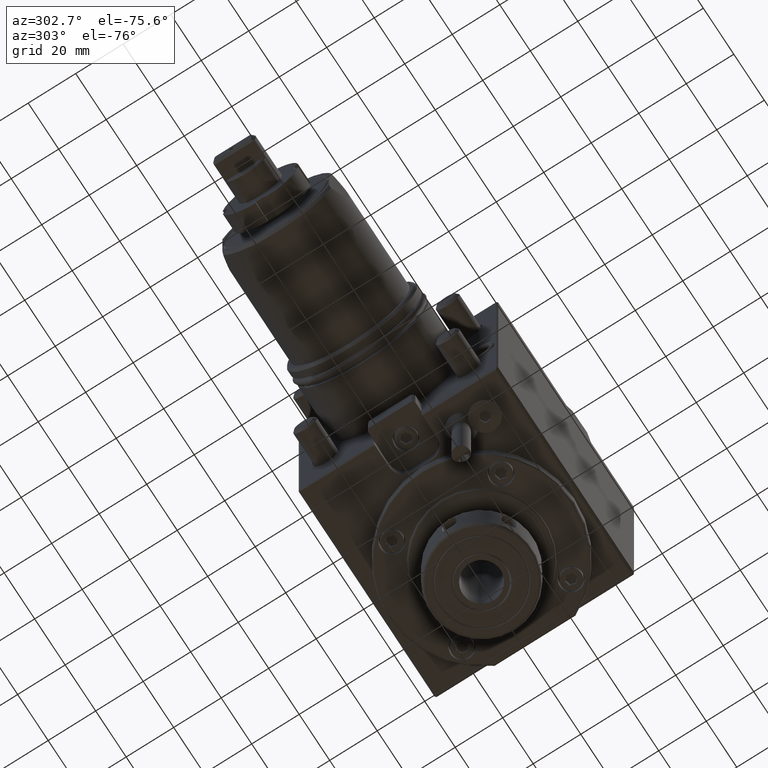
[diagram: clean part render]
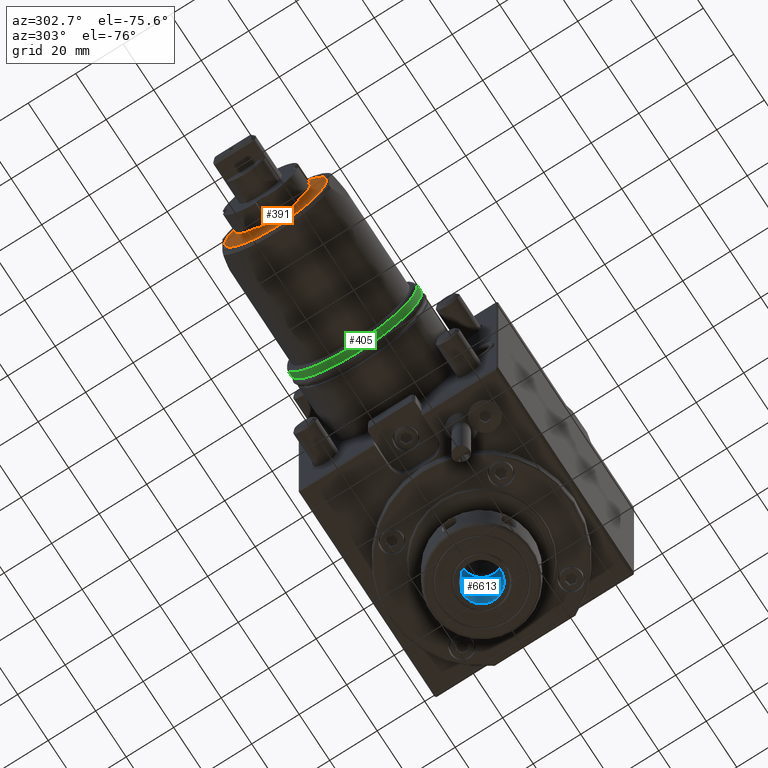
[diagram: same view with three faces highlighted in distinct colors, each labeled with its STEP entity id]
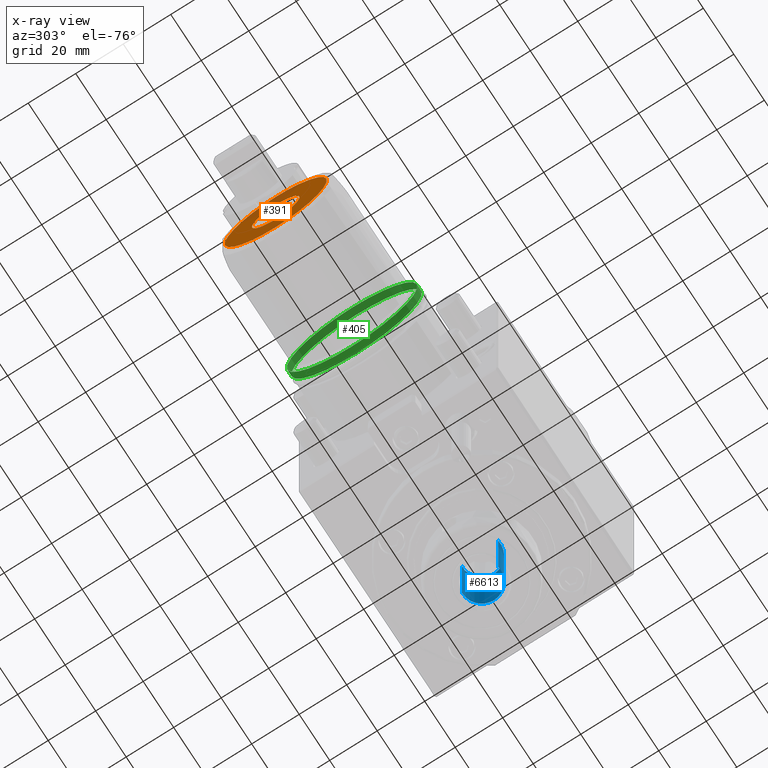
[diagram: x-ray of the same camera — body ghosted, the three highlighted faces saturated]
A machine part, auxiliary view with three faces highlighted in distinct colors.
The next image is the same camera in x-ray (body ghosted, the three faces saturated) — at least one of them is partly hidden behind the body in this view.
Their STEP definitions:

[orange] entity #391 — the highlighted planar face has unit normal (-1, 0, 0).
#284 = FACE_OUTER_BOUND ( 'NONE', #11391, .T. ) ;
#391 = ADVANCED_FACE ( 'NONE', ( #9730, #284 ), #3385, .T. ) ;
#621 = CARTESIAN_POINT ( 'NONE',  ( -79.99999999999823785, 7.506671797389940721E-14, 21.49996253417524983 ) ) ;
#1809 = EDGE_LOOP ( 'NONE', ( #7541 ) ) ;
#1979 = AXIS2_PLACEMENT_3D ( 'NONE', #5243, #6054, #11553 ) ;
#3185 = DIRECTION ( 'NONE',  ( 6.938892702434765283E-15, 3.491481338843133355E-15, 1.000000000000000000 ) ) ;
#3239 = AXIS2_PLACEMENT_3D ( 'NONE', #11298, #5844, #3185 ) ;
#3385 = PLANE ( 'NONE',  #1979 ) ;
#3892 = CARTESIAN_POINT ( 'NONE',  ( -79.99999999999832312, 3.491481943394924410E-14, 10.00000173150514726 ) ) ;
#5197 = VERTEX_POINT ( 'NONE', #621 ) ;
#5243 = CARTESIAN_POINT ( 'NONE',  ( -79.99999999999839417, 1.911695424151806058E-27, 5.475313308663499075E-13 ) ) ;
#5844 = DIRECTION ( 'NONE',  ( 1.000000000000000000, -2.416709936738970001E-29, -6.921732359995147848E-15 ) ) ;
#5880 = DIRECTION ( 'NONE',  ( -1.000000000000000000, 2.416709936738970001E-29, 6.921732359995147848E-15 ) ) ;
#6054 = DIRECTION ( 'NONE',  ( -1.000000000000000000, 2.416709936738970001E-29, 6.921732359995147848E-15 ) ) ;
#6799 = CARTESIAN_POINT ( 'NONE',  ( -79.99999999999839417, 1.911695424151806058E-27, 5.475313308663499075E-13 ) ) ;
#7541 = ORIENTED_EDGE ( 'NONE', *, *, #10795, .T. ) ;
#8351 = EDGE_CURVE ( 'NONE', #5197, #5197, #11208, .T. ) ;
#8508 = AXIS2_PLACEMENT_3D ( 'NONE', #6799, #5880, #9562 ) ;
#8652 = ORIENTED_EDGE ( 'NONE', *, *, #8351, .T. ) ;
#8703 = VERTEX_POINT ( 'NONE', #3892 ) ;
#9562 = DIRECTION ( 'NONE',  ( 7.100275902495606660E-15, 3.491481338843132961E-15, 1.000000000000000000 ) ) ;
#9730 = FACE_BOUND ( 'NONE', #1809, .T. ) ;
#10209 = CIRCLE ( 'NONE', #3239, 10.00000173150460014 ) ;
#10795 = EDGE_CURVE ( 'NONE', #8703, #8703, #10209, .T. ) ;
#11208 = CIRCLE ( 'NONE', #8508, 21.49996253417470271 ) ;
#11298 = CARTESIAN_POINT ( 'NONE',  ( -79.99999999999839417, 1.911695424151806058E-27, 5.475313308663499075E-13 ) ) ;
#11391 = EDGE_LOOP ( 'NONE', ( #8652 ) ) ;
#11553 = DIRECTION ( 'NONE',  ( -6.921732359995147848E-15, -3.491481338843133355E-15, -1.000000000000000000 ) ) ;

[blue] entity #6613 — the highlighted cylindrical surface (edge-blend (fillet) strip) has radius 8 mm, axis along (-0, -0, -1).
#53 = ORIENTED_EDGE ( 'NONE', *, *, #9553, .T. ) ;
#755 = CARTESIAN_POINT ( 'NONE',  ( 53.60514746841820255, -7.877468338578965223, -84.50000000000035527 ) ) ;
#812 = DIRECTION ( 'NONE',  ( -6.940284708437133209E-15, -3.491481338843133355E-15, -1.000000000000000000 ) ) ;
#857 = CARTESIAN_POINT ( 'NONE',  ( 61.53360636614925028, 4.742323755315887901, -84.50000000062114225 ) ) ;
#1148 = CARTESIAN_POINT ( 'NONE',  ( 54.99999999999941025, -2.950301731322461254E-13, -84.50000000000039790 ) ) ;
#1400 = DIRECTION ( 'NONE',  ( -1.000000000000000000, 2.465189257704882864E-29, 6.938890888998412564E-15 ) ) ;
#1548 = VERTEX_POINT ( 'NONE', #11341 ) ;
#1762 = CARTESIAN_POINT ( 'NONE',  ( 54.13697720904740862, -7.953316746967255213, -84.50000000062085803 ) ) ;
#1826 = DIRECTION ( 'NONE',  ( -1.000000000000000000, 2.465187998247913771E-29, 6.938887343942202129E-15 ) ) ;
#2037 = VECTOR ( 'NONE', #4453, 1000.000000000000000 ) ;
#2069 = AXIS2_PLACEMENT_3D ( 'NONE', #5382, #812, #1826 ) ;
#2116 = EDGE_CURVE ( 'NONE', #10483, #7891, #3857, .T. ) ;
#2603 = CIRCLE ( 'NONE', #6476, 8.000011650309071243 ) ;
#2709 = ORIENTED_EDGE ( 'NONE', *, *, #4631, .F. ) ;
#2721 = ORIENTED_EDGE ( 'NONE', *, *, #4728, .T. ) ;
#2724 = CARTESIAN_POINT ( 'NONE',  ( 61.69524361906412224, -4.511248123236645036, -84.50000000062111383 ) ) ;
#2736 = FACE_OUTER_BOUND ( 'NONE', #4198, .T. ) ;
#2783 = CARTESIAN_POINT ( 'NONE',  ( 63.04504416676796552, 0.6744709799343546752, -84.50000000062115646 ) ) ;
#2959 = DIRECTION ( 'NONE',  ( -1.000000000000000000, 2.465189257704882864E-29, 6.938890888998412564E-15 ) ) ;
#3041 = VERTEX_POINT ( 'NONE', #6545 ) ;
#3244 = CARTESIAN_POINT ( 'NONE',  ( 54.99999999999967315, -1.640996146187237612E-13, -46.99999762080827992 ) ) ;
#3379 = ORIENTED_EDGE ( 'NONE', *, *, #11314, .T. ) ;
#3547 = CARTESIAN_POINT ( 'NONE',  ( 54.41734878235686779, 7.978765817070824440, -46.99999762080830834 ) ) ;
#3857 = B_SPLINE_CURVE_WITH_KNOTS ( 'NONE', 3,
 ( #4528, #5302, #6350, #11857, #5366, #857, #10829, #9003, #2783, #9242, #8218, #2724, #6288, #11915, #6468, #9966, #7317, #11011 ),
 .UNSPECIFIED., .F., .F.,
 ( 4, 2, 2, 2, 2, 2, 2, 2, 4 ),
 ( 0.000000000000000000, 0.1249999999999999445, 0.2499999999999998890, 0.3749999999999998335, 0.5000000000000000000, 0.6250000000000001110, 0.7500000000000001110, 0.8750000000000000000, 1.000000000000000000 ),
 .UNSPECIFIED. ) ;
#4198 = EDGE_LOOP ( 'NONE', ( #2709, #2721, #53, #11709, #3379, #6314 ) ) ;
#4223 = AXIS2_PLACEMENT_3D ( 'NONE', #1148, #4819, #2959 ) ;
#4453 = DIRECTION ( 'NONE',  ( -6.982962677686266711E-15, -3.491481338843133355E-15, -1.000000000000000000 ) ) ;
#4509 = CARTESIAN_POINT ( 'NONE',  ( 54.41734908003115834, 7.978761740748009146, -63.08935524965240660 ) ) ;
#4528 = CARTESIAN_POINT ( 'NONE',  ( 54.95414532491950865, 7.999872059230455079, -84.50000000062092909 ) ) ;
#4631 = EDGE_CURVE ( 'NONE', #4733, #1548, #2603, .T. ) ;
#4644 = AXIS2_PLACEMENT_3D ( 'NONE', #10526, #10712, #1400 ) ;
#4728 = EDGE_CURVE ( 'NONE', #4733, #3041, #5599, .T. ) ;
#4733 = VERTEX_POINT ( 'NONE', #3547 ) ;
#4819 = DIRECTION ( 'NONE',  ( -6.940284708437133209E-15, -3.491481338843133355E-15, -1.000000000000000000 ) ) ;
#5302 = CARTESIAN_POINT ( 'NONE',  ( 56.03926605585761678, 8.006095978263477519, -84.50000000062111383 ) ) ;
#5366 = CARTESIAN_POINT ( 'NONE',  ( 60.03425317552104445, 6.311413606536729226, -84.50000000062112804 ) ) ;
#5382 = CARTESIAN_POINT ( 'NONE',  ( 54.99999999999929656, -3.497719917061358356E-13, -100.1786799817263898 ) ) ;
#5599 = LINE ( 'NONE', #4509, #2037 ) ;
#6244 = CYLINDRICAL_SURFACE ( 'NONE', #2069, 8.000007563131898536 ) ;
#6288 = CARTESIAN_POINT ( 'NONE',  ( 61.01485107808098718, -5.385091759342134132, -84.50000000062112804 ) ) ;
#6314 = ORIENTED_EDGE ( 'NONE', *, *, #6837, .T. ) ;
#6350 = CARTESIAN_POINT ( 'NONE',  ( 57.12517749307807691, 7.788534353197504423, -84.50000000062112804 ) ) ;
#6468 = CARTESIAN_POINT ( 'NONE',  ( 58.39232909290323903, -7.325964105390707637, -84.50000000062108541 ) ) ;
#6476 = AXIS2_PLACEMENT_3D ( 'NONE', #3244, #6941, #8704 ) ;
#6545 = CARTESIAN_POINT ( 'NONE',  ( 54.41734908003100912, 7.978761740747934539, -84.50000000000041211 ) ) ;
#6613 = ADVANCED_FACE ( 'NONE', ( #2736 ), #6244, .F. ) ;
#6837 = EDGE_CURVE ( 'NONE', #11953, #1548, #9785, .T. ) ;
#6941 = DIRECTION ( 'NONE',  ( -6.940284708437133209E-15, -3.491481338843133355E-15, -1.000000000000000000 ) ) ;
#7251 = DIRECTION ( 'NONE',  ( 6.982962677686266711E-15, 3.491481338843133355E-15, 1.000000000000000000 ) ) ;
#7317 = CARTESIAN_POINT ( 'NONE',  ( 55.21578265456025036, -8.070383175167451739, -84.50000000062107119 ) ) ;
#7891 = VERTEX_POINT ( 'NONE', #1762 ) ;
#8137 = CARTESIAN_POINT ( 'NONE',  ( 54.95414532491950865, 7.999872059230455079, -84.50000000062092909 ) ) ;
#8218 = CARTESIAN_POINT ( 'NONE',  ( 62.65504661787486640, -2.564743267109843128, -84.50000000062111383 ) ) ;
#8704 = DIRECTION ( 'NONE',  ( -1.000000000000000000, 2.465186738792233873E-29, 6.938883798889620455E-15 ) ) ;
#9002 = CARTESIAN_POINT ( 'NONE',  ( 53.60514746841835887, -7.877468338578890616, -63.08935524965235686 ) ) ;
#9003 = CARTESIAN_POINT ( 'NONE',  ( 62.87704082185681642, 1.769145171776950853, -84.50000000062115646 ) ) ;
#9048 = CIRCLE ( 'NONE', #4223, 8.000003475954718724 ) ;
#9091 = CIRCLE ( 'NONE', #4644, 8.000003475954718724 ) ;
#9242 = CARTESIAN_POINT ( 'NONE',  ( 62.93402189572151428, -1.492964603141417657, -84.50000000062111383 ) ) ;
#9553 = EDGE_CURVE ( 'NONE', #3041, #10483, #9091, .T. ) ;
#9785 = LINE ( 'NONE', #9002, #11672 ) ;
#9966 = CARTESIAN_POINT ( 'NONE',  ( 56.31824054849057148, -7.964916107803575507, -84.50000000062107119 ) ) ;
#10483 = VERTEX_POINT ( 'NONE', #8137 ) ;
#10526 = CARTESIAN_POINT ( 'NONE',  ( 54.99999999999941025, -2.950301731322461254E-13, -84.50000000000039790 ) ) ;
#10712 = DIRECTION ( 'NONE',  ( -6.940284708437133209E-15, -3.491481338843133355E-15, -1.000000000000000000 ) ) ;
#10829 = CARTESIAN_POINT ( 'NONE',  ( 62.12115055913739781, 3.803532760752394992, -84.50000000062112804 ) ) ;
#11011 = CARTESIAN_POINT ( 'NONE',  ( 54.13697720904740862, -7.953316746967255213, -84.50000000062085803 ) ) ;
#11314 = EDGE_CURVE ( 'NONE', #7891, #11953, #9048, .T. ) ;
#11341 = CARTESIAN_POINT ( 'NONE',  ( 53.60514746841847256, -7.877468338578835549, -46.99999762080674515 ) ) ;
#11672 = VECTOR ( 'NONE', #7251, 1000.000000000000000 ) ;
#11709 = ORIENTED_EDGE ( 'NONE', *, *, #2116, .T. ) ;
#11857 = CARTESIAN_POINT ( 'NONE',  ( 59.12312399289891118, 6.941001029188990756, -84.50000000062111383 ) ) ;
#11915 = CARTESIAN_POINT ( 'NONE',  ( 59.36301934018379711, -6.792768874708722038, -84.50000000062111383 ) ) ;
#11953 = VERTEX_POINT ( 'NONE', #755 ) ;

[green] entity #405 — the highlighted cylindrical surface (bore or boss wall) has radius 27.5 mm, axis along (-1, 0, 0).
#367 = ORIENTED_EDGE ( 'NONE', *, *, #7428, .T. ) ;
#405 = ADVANCED_FACE ( 'NONE', ( #2476, #2355 ), #2296, .T. ) ;
#696 = DIRECTION ( 'NONE',  ( -1.000000000000000000, 2.416709936738970001E-29, 6.921732359995147848E-15 ) ) ;
#818 = CARTESIAN_POINT ( 'NONE',  ( -26.99999999999804956, 6.308391576801436420E-28, 1.806795157866047239E-13 ) ) ;
#1521 = VERTEX_POINT ( 'NONE', #8110 ) ;
#2097 = AXIS2_PLACEMENT_3D ( 'NONE', #818, #696, #7220 ) ;
#2133 = VERTEX_POINT ( 'NONE', #10358 ) ;
#2296 = CYLINDRICAL_SURFACE ( 'NONE', #9110, 27.50000150680589783 ) ;
#2355 = FACE_OUTER_BOUND ( 'NONE', #9338, .T. ) ;
#2465 = DIRECTION ( 'NONE',  ( -6.938893503694182363E-15, -3.491481338843133355E-15, -1.000000000000000000 ) ) ;
#2476 = FACE_OUTER_BOUND ( 'NONE', #11258, .T. ) ;
#2990 = DIRECTION ( 'NONE',  ( -7.065055224135836543E-15, -3.491481338843133355E-15, -1.000000000000000000 ) ) ;
#4761 = AXIS2_PLACEMENT_3D ( 'NONE', #8212, #10882, #2465 ) ;
#4937 = ORIENTED_EDGE ( 'NONE', *, *, #5780, .F. ) ;
#5780 = EDGE_CURVE ( 'NONE', #2133, #2133, #8448, .T. ) ;
#7220 = DIRECTION ( 'NONE',  ( -6.938893543715483967E-15, -3.491481338843133355E-15, -1.000000000000000000 ) ) ;
#7428 = EDGE_CURVE ( 'NONE', #1521, #1521, #11955, .T. ) ;
#7587 = CARTESIAN_POINT ( 'NONE',  ( 101.3755630758570021, -2.471625831518649601E-27, -7.079017733881394778E-13 ) ) ;
#8110 = CARTESIAN_POINT ( 'NONE',  ( -26.99999999999824141, -9.601574180227636915E-14, -27.50000142750016963 ) ) ;
#8212 = CARTESIAN_POINT ( 'NONE',  ( -30.00000005286855043, 7.033404570600393296E-28, 2.014447132325455939E-13 ) ) ;
#8448 = CIRCLE ( 'NONE', #4761, 27.50000158611149814 ) ;
#9110 = AXIS2_PLACEMENT_3D ( 'NONE', #7587, #11275, #2990 ) ;
#9338 = EDGE_LOOP ( 'NONE', ( #4937 ) ) ;
#10358 = CARTESIAN_POINT ( 'NONE',  ( -30.00000005286873872, -9.601574235606415884E-14, -27.50000158611129919 ) ) ;
#10882 = DIRECTION ( 'NONE',  ( -1.000000000000000000, 2.416709936738970001E-29, 6.921732359995147848E-15 ) ) ;
#11258 = EDGE_LOOP ( 'NONE', ( #367 ) ) ;
#11275 = DIRECTION ( 'NONE',  ( -1.000000000000000000, 2.416709936738970001E-29, 6.921732359995147848E-15 ) ) ;
#11955 = CIRCLE ( 'NONE', #2097, 27.50000142750035081 ) ;